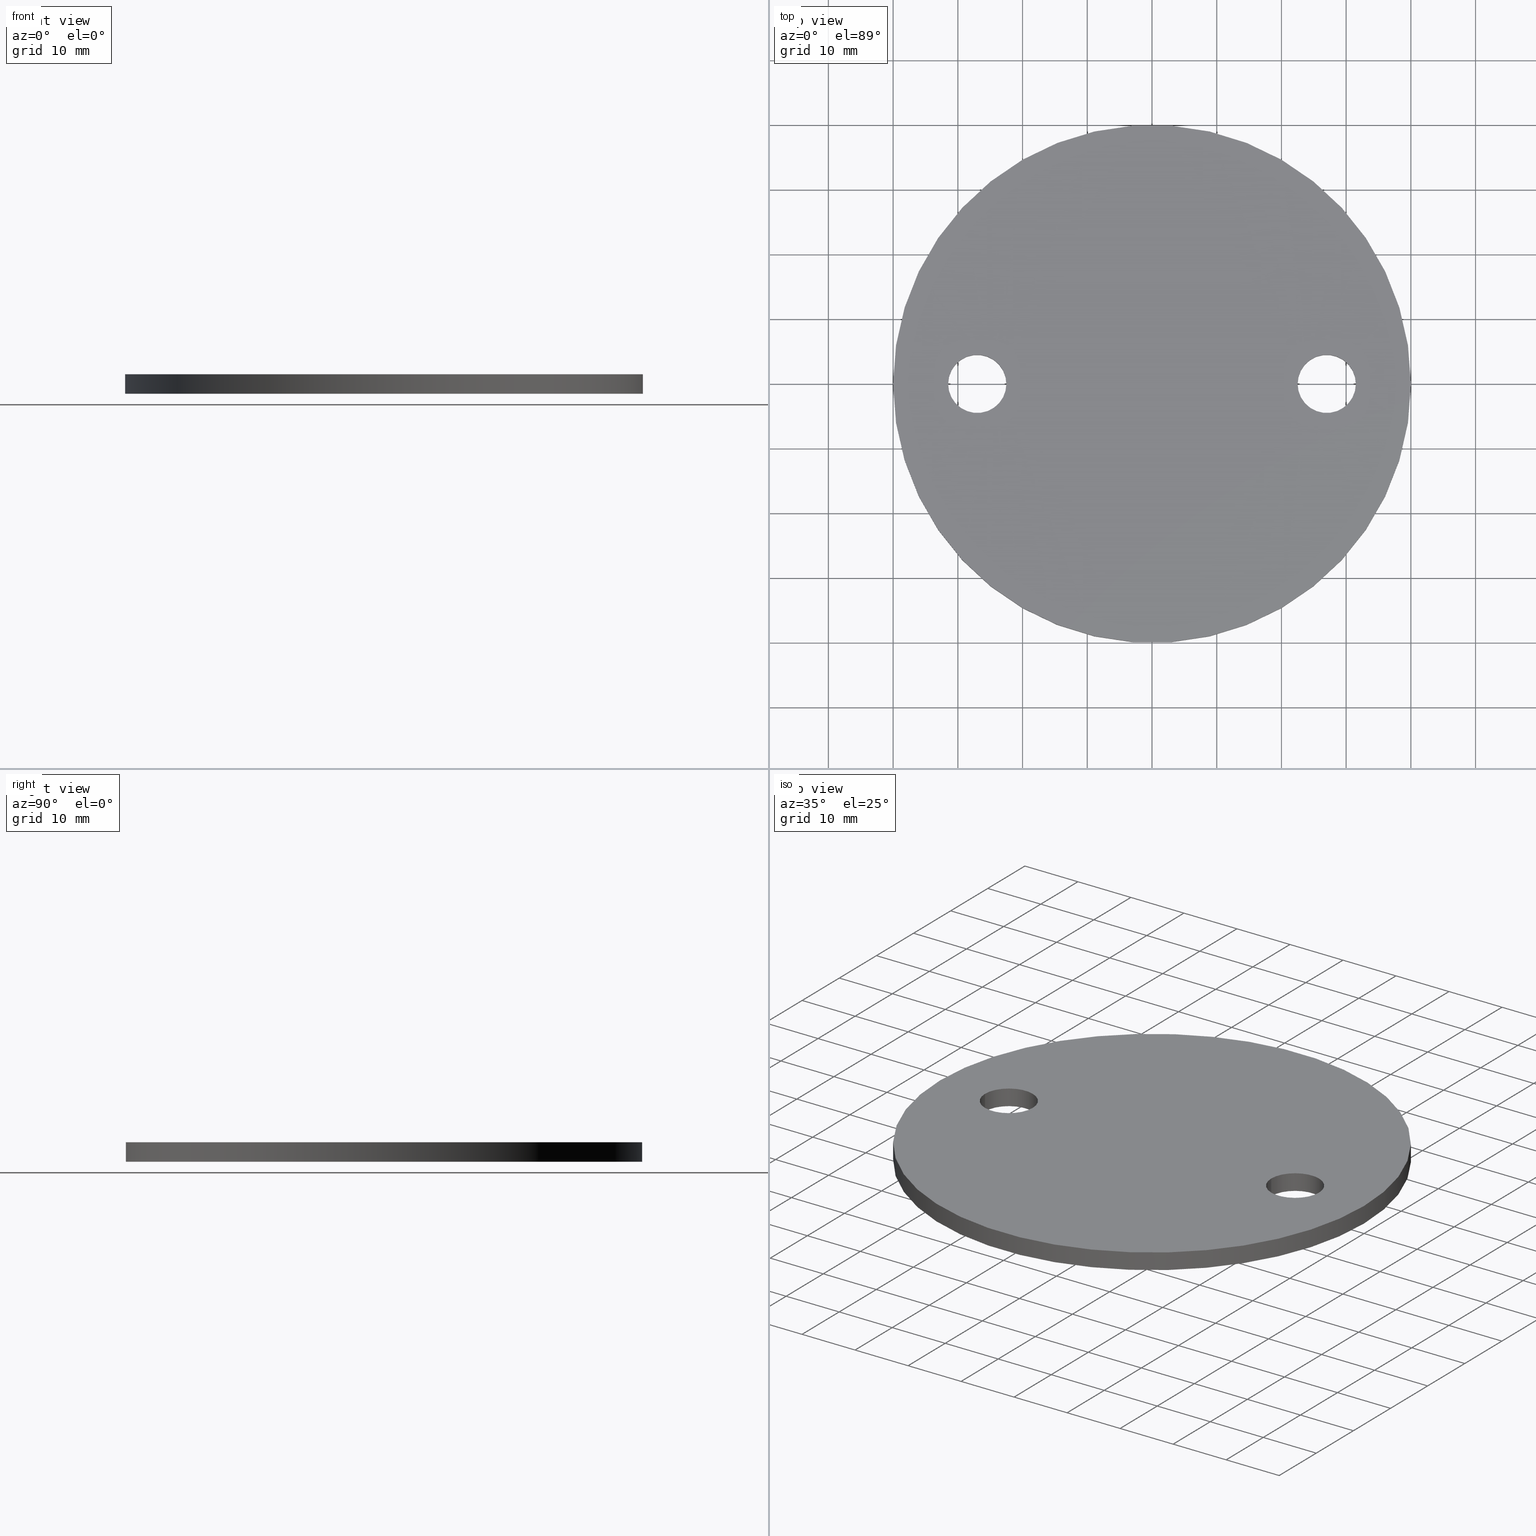
[diagram: canonical four-view strip — front | top / right | iso, engineering-drawing reading convention]
A machine part, canonical four-view strip (front | top / right | iso — engineering-drawing reading convention). The complete STEP part file that produces these views, byte-faithful:
ISO-10303-21;
HEADER;
/* Generated by software containing ST-Developer
 * from STEP Tools, Inc. (www.steptools.com) 
 */

FILE_DESCRIPTION(
/* description */ ('ACC.PIEDE'),
/* implementation_level */ '2;1');

FILE_NAME(
/* name */ 
'C:\\Users\\tecnico7\\Desktop\\NUOVI DISEGNI 3D\\CPDAA0000016.stp',
/* time_stamp */ '2022-11-22T15:46:15+01:00',
/* author */ ('tecnico7'),
/* organization */ (''),
/* preprocessor_version */ 'ST-DEVELOPER v18.1',
/* originating_system */ 'Autodesk Inventor 2022',
/* authorisation */ '');

FILE_SCHEMA (('AUTOMOTIVE_DESIGN { 1 0 10303 214 3 1 1 }'));
ENDSEC;

DATA;
#10=MECHANICAL_DESIGN_GEOMETRIC_PRESENTATION_REPRESENTATION('',(#13),#173);
#11=SHAPE_REPRESENTATION_RELATIONSHIP('SRR','None',#180,#12);
#12=ADVANCED_BREP_SHAPE_REPRESENTATION('',(#14),#172);
#13=STYLED_ITEM('',(#189),#14);
#14=MANIFOLD_SOLID_BREP('None',#88);
#15=FACE_BOUND('',#28,.T.);
#16=FACE_BOUND('',#29,.T.);
#17=FACE_BOUND('',#31,.T.);
#18=FACE_BOUND('',#32,.T.);
#19=PLANE('',#114);
#20=PLANE('',#117);
#21=FACE_OUTER_BOUND('',#26,.T.);
#22=FACE_OUTER_BOUND('',#27,.T.);
#23=FACE_OUTER_BOUND('',#30,.T.);
#24=FACE_OUTER_BOUND('',#33,.T.);
#25=FACE_OUTER_BOUND('',#34,.T.);
#26=EDGE_LOOP('',(#62,#63,#64,#65));
#27=EDGE_LOOP('',(#66));
#28=EDGE_LOOP('',(#67));
#29=EDGE_LOOP('',(#68));
#30=EDGE_LOOP('',(#69));
#31=EDGE_LOOP('',(#70));
#32=EDGE_LOOP('',(#71));
#33=EDGE_LOOP('',(#72,#73,#74,#75));
#34=EDGE_LOOP('',(#76,#77,#78,#79));
#35=LINE('',#154,#38);
#36=LINE('',#167,#39);
#37=LINE('',#169,#40);
#38=VECTOR('',#128,40.);
#39=VECTOR('',#145,4.5);
#40=VECTOR('',#148,4.5);
#41=CIRCLE('',#112,40.);
#42=CIRCLE('',#113,40.);
#43=CIRCLE('',#115,4.5);
#44=CIRCLE('',#116,4.5);
#45=CIRCLE('',#118,4.5);
#46=CIRCLE('',#119,4.5);
#47=VERTEX_POINT('',#151);
#48=VERTEX_POINT('',#153);
#49=VERTEX_POINT('',#157);
#50=VERTEX_POINT('',#159);
#51=VERTEX_POINT('',#162);
#52=VERTEX_POINT('',#164);
#53=EDGE_CURVE('',#47,#47,#41,.T.);
#54=EDGE_CURVE('',#47,#48,#35,.T.);
#55=EDGE_CURVE('',#48,#48,#42,.T.);
#56=EDGE_CURVE('',#49,#49,#43,.T.);
#57=EDGE_CURVE('',#50,#50,#44,.T.);
#58=EDGE_CURVE('',#51,#51,#45,.T.);
#59=EDGE_CURVE('',#52,#52,#46,.T.);
#60=EDGE_CURVE('',#49,#51,#36,.T.);
#61=EDGE_CURVE('',#50,#52,#37,.T.);
#62=ORIENTED_EDGE('',*,*,#53,.F.);
#63=ORIENTED_EDGE('',*,*,#54,.T.);
#64=ORIENTED_EDGE('',*,*,#55,.T.);
#65=ORIENTED_EDGE('',*,*,#54,.F.);
#66=ORIENTED_EDGE('',*,*,#55,.F.);
#67=ORIENTED_EDGE('',*,*,#56,.F.);
#68=ORIENTED_EDGE('',*,*,#57,.F.);
#69=ORIENTED_EDGE('',*,*,#53,.T.);
#70=ORIENTED_EDGE('',*,*,#58,.F.);
#71=ORIENTED_EDGE('',*,*,#59,.F.);
#72=ORIENTED_EDGE('',*,*,#56,.T.);
#73=ORIENTED_EDGE('',*,*,#60,.T.);
#74=ORIENTED_EDGE('',*,*,#58,.T.);
#75=ORIENTED_EDGE('',*,*,#60,.F.);
#76=ORIENTED_EDGE('',*,*,#57,.T.);
#77=ORIENTED_EDGE('',*,*,#61,.T.);
#78=ORIENTED_EDGE('',*,*,#59,.T.);
#79=ORIENTED_EDGE('',*,*,#61,.F.);
#80=CYLINDRICAL_SURFACE('',#111,40.);
#81=CYLINDRICAL_SURFACE('',#120,4.5);
#82=CYLINDRICAL_SURFACE('',#121,4.5);
#83=ADVANCED_FACE('',(#21),#80,.T.);
#84=ADVANCED_FACE('',(#22,#15,#16),#19,.F.);
#85=ADVANCED_FACE('',(#23,#17,#18),#20,.T.);
#86=ADVANCED_FACE('',(#24),#81,.F.);
#87=ADVANCED_FACE('',(#25),#82,.F.);
#88=CLOSED_SHELL('',(#83,#84,#85,#86,#87));
#89=DERIVED_UNIT_ELEMENT(#92,1.);
#90=DERIVED_UNIT_ELEMENT(#175,-3.);
#91=DIMENSIONAL_EXPONENTS(1.,0.,0.,0.,0.,0.,0.);
#92=(
CONVERSION_BASED_UNIT('gram',#94)
MASS_UNIT()
NAMED_UNIT(#91)
);
#93=(
MASS_UNIT()
NAMED_UNIT(*)
SI_UNIT(.KILO.,.GRAM.)
);
#94=MASS_MEASURE_WITH_UNIT(MASS_MEASURE(0.001),#93);
#95=DERIVED_UNIT((#89,#90));
#96=MEASURE_REPRESENTATION_ITEM('density measure',
POSITIVE_RATIO_MEASURE(0.93),#95);
#97=PROPERTY_DEFINITION_REPRESENTATION(#102,#99);
#98=PROPERTY_DEFINITION_REPRESENTATION(#103,#100);
#99=REPRESENTATION('material name',(#101),#172);
#100=REPRESENTATION('density',(#96),#172);
#101=DESCRIPTIVE_REPRESENTATION_ITEM('Gomma','Gomma');
#102=PROPERTY_DEFINITION('material property','material name',#182);
#103=PROPERTY_DEFINITION('material property','density of part',#182);
#104=DATE_TIME_ROLE('creation_date');
#105=APPLIED_DATE_AND_TIME_ASSIGNMENT(#106,#104,(#182));
#106=DATE_AND_TIME(#107,#108);
#107=CALENDAR_DATE(2011,28,12);
#108=LOCAL_TIME(0,0,0.,#109);
#109=COORDINATED_UNIVERSAL_TIME_OFFSET(0,0,.BEHIND.);
#110=AXIS2_PLACEMENT_3D('placement',#149,#122,#123);
#111=AXIS2_PLACEMENT_3D('',#150,#124,#125);
#112=AXIS2_PLACEMENT_3D('',#152,#126,#127);
#113=AXIS2_PLACEMENT_3D('',#155,#129,#130);
#114=AXIS2_PLACEMENT_3D('',#156,#131,#132);
#115=AXIS2_PLACEMENT_3D('',#158,#133,#134);
#116=AXIS2_PLACEMENT_3D('',#160,#135,#136);
#117=AXIS2_PLACEMENT_3D('',#161,#137,#138);
#118=AXIS2_PLACEMENT_3D('',#163,#139,#140);
#119=AXIS2_PLACEMENT_3D('',#165,#141,#142);
#120=AXIS2_PLACEMENT_3D('',#166,#143,#144);
#121=AXIS2_PLACEMENT_3D('',#168,#146,#147);
#122=DIRECTION('axis',(0.,0.,1.));
#123=DIRECTION('refdir',(1.,0.,0.));
#124=DIRECTION('center_axis',(6.6404364E-8,0.,-0.999999999999998));
#125=DIRECTION('ref_axis',(0.999999999999998,0.,6.6404364E-8));
#126=DIRECTION('center_axis',(6.6404364E-8,0.,-0.999999999999998));
#127=DIRECTION('ref_axis',(0.999999999999998,0.,6.6404364E-8));
#128=DIRECTION('',(-6.6404364E-8,0.,0.999999999999998));
#129=DIRECTION('center_axis',(6.6404364E-8,0.,-0.999999999999998));
#130=DIRECTION('ref_axis',(0.999999999999998,0.,6.6404364E-8));
#131=DIRECTION('center_axis',(6.6404364E-8,0.,-0.999999999999998));
#132=DIRECTION('ref_axis',(-0.999999999999998,0.,-6.6404364E-8));
#133=DIRECTION('center_axis',(-6.6404364E-8,0.,0.999999999999998));
#134=DIRECTION('ref_axis',(0.999999999999998,0.,6.6404364E-8));
#135=DIRECTION('center_axis',(-6.6404364E-8,0.,0.999999999999998));
#136=DIRECTION('ref_axis',(0.999999999999998,0.,6.6404364E-8));
#137=DIRECTION('center_axis',(6.6404364E-8,0.,-0.999999999999998));
#138=DIRECTION('ref_axis',(-0.999999999999998,0.,-6.6404364E-8));
#139=DIRECTION('center_axis',(6.6404364E-8,0.,-0.999999999999998));
#140=DIRECTION('ref_axis',(0.999999999999998,0.,6.6404364E-8));
#141=DIRECTION('center_axis',(6.6404364E-8,0.,-0.999999999999998));
#142=DIRECTION('ref_axis',(0.999999999999998,0.,6.6404364E-8));
#143=DIRECTION('center_axis',(6.6404364E-8,0.,-0.999999999999998));
#144=DIRECTION('ref_axis',(0.999999999999998,0.,6.6404364E-8));
#145=DIRECTION('',(6.6404364E-8,0.,-0.999999999999998));
#146=DIRECTION('center_axis',(6.6404364E-8,0.,-0.999999999999998));
#147=DIRECTION('ref_axis',(0.999999999999998,0.,6.6404364E-8));
#148=DIRECTION('',(6.6404364E-8,0.,-0.999999999999998));
#149=CARTESIAN_POINT('',(0.,0.,0.));
#150=CARTESIAN_POINT('Origin',(-2.646772E-13,-4.52971E-14,1.328249146E-6));
#151=CARTESIAN_POINT('',(-39.9999995351696,-4.52971E-14,-7.0000013279254));
#152=CARTESIAN_POINT('Origin',(4.64830284E-7,-4.52971E-14,-6.99999867175084));
#153=CARTESIAN_POINT('',(-39.9999997343827,-4.52971E-14,-4.00000132792541));
#154=CARTESIAN_POINT('',(-40.0000000000002,-4.03985128034106E-14,-1.327925414E-6));
#155=CARTESIAN_POINT('Origin',(2.656171913228E-7,-4.52971E-14,-3.99999867175084));
#156=CARTESIAN_POINT('Origin',(-48.001199734566,48.0012000001833,-4.00000185924));
#157=CARTESIAN_POINT('',(-31.4999989156421,-2.842171E-14,-4.00000076348826));
#158=CARTESIAN_POINT('Origin',(-26.9999989156421,-2.842171E-14,-4.00000046466862));
#159=CARTESIAN_POINT('',(22.5000011840302,-2.842171E-14,-3.9999971776526));
#160=CARTESIAN_POINT('Origin',(27.0000011840301,-2.842171E-14,-3.99999687883296));
#161=CARTESIAN_POINT('Origin',(-48.0011995353529,48.0012000001833,-7.00000185924));
#162=CARTESIAN_POINT('',(-31.499998716429,-2.842171E-14,-7.00000076348825));
#163=CARTESIAN_POINT('Origin',(-26.999998716429,-2.842171E-14,-7.00000046466861));
#164=CARTESIAN_POINT('',(22.5000013832433,-2.842171E-14,-6.99999717765259));
#165=CARTESIAN_POINT('Origin',(27.0000013832432,-2.842171E-14,-6.99999687883295));
#166=CARTESIAN_POINT('Origin',(-26.999998716429,-2.842171E-14,-7.00000046466861));
#167=CARTESIAN_POINT('',(-31.499998716429,-2.78706189403837E-14,-7.00000076348825));
#168=CARTESIAN_POINT('Origin',(27.0000013832432,-2.842171E-14,-6.99999687883295));
#169=CARTESIAN_POINT('',(22.5000013832432,-2.78706189403837E-14,-6.99999717765259));
#170=UNCERTAINTY_MEASURE_WITH_UNIT(LENGTH_MEASURE(0.01),#174,
'DISTANCE_ACCURACY_VALUE',
'Maximum model space distance between geometric entities at asserted c
onnectivities');
#171=UNCERTAINTY_MEASURE_WITH_UNIT(LENGTH_MEASURE(0.01),#174,
'DISTANCE_ACCURACY_VALUE',
'Maximum model space distance between geometric entities at asserted c
onnectivities');
#172=(
GEOMETRIC_REPRESENTATION_CONTEXT(3)
GLOBAL_UNCERTAINTY_ASSIGNED_CONTEXT((#170))
GLOBAL_UNIT_ASSIGNED_CONTEXT((#174,#176,#177))
REPRESENTATION_CONTEXT('','3D')
);
#173=(
GEOMETRIC_REPRESENTATION_CONTEXT(3)
GLOBAL_UNCERTAINTY_ASSIGNED_CONTEXT((#171))
GLOBAL_UNIT_ASSIGNED_CONTEXT((#174,#176,#177))
REPRESENTATION_CONTEXT('','3D')
);
#174=(
LENGTH_UNIT()
NAMED_UNIT(*)
SI_UNIT(.MILLI.,.METRE.)
);
#175=(
LENGTH_UNIT()
NAMED_UNIT(*)
SI_UNIT(.CENTI.,.METRE.)
);
#176=(
NAMED_UNIT(*)
PLANE_ANGLE_UNIT()
SI_UNIT($,.RADIAN.)
);
#177=(
NAMED_UNIT(*)
SI_UNIT($,.STERADIAN.)
SOLID_ANGLE_UNIT()
);
#178=SHAPE_DEFINITION_REPRESENTATION(#179,#180);
#179=PRODUCT_DEFINITION_SHAPE('',$,#182);
#180=SHAPE_REPRESENTATION('',(#110),#172);
#181=PRODUCT_DEFINITION_CONTEXT('part definition',#186,'design');
#182=PRODUCT_DEFINITION('CPDAA0000016','CPDAA0000016',#183,#181);
#183=PRODUCT_DEFINITION_FORMATION('A',$,#188);
#184=PRODUCT_RELATED_PRODUCT_CATEGORY('CPDAA0000016','CPDAA0000016',(#188));
#185=APPLICATION_PROTOCOL_DEFINITION('international standard',
'automotive_design',2009,#186);
#186=APPLICATION_CONTEXT(
'Core Data for Automotive Mechanical Design Process');
#187=PRODUCT_CONTEXT('part definition',#186,'mechanical');
#188=PRODUCT('CPDAA0000016','CPDAA0000016','ACC.PIEDE',(#187));
#189=PRESENTATION_STYLE_ASSIGNMENT((#190));
#190=SURFACE_STYLE_USAGE(.BOTH.,#193);
#191=SURFACE_STYLE_RENDERING_WITH_PROPERTIES($,#197,(#192));
#192=SURFACE_STYLE_TRANSPARENT(0.);
#193=SURFACE_SIDE_STYLE('',(#194,#191));
#194=SURFACE_STYLE_FILL_AREA(#195);
#195=FILL_AREA_STYLE('',(#196));
#196=FILL_AREA_STYLE_COLOUR('',#197);
#197=COLOUR_RGB('',0.258823529411765,0.258823529411765,0.258823529411765);
ENDSEC;
END-ISO-10303-21;
